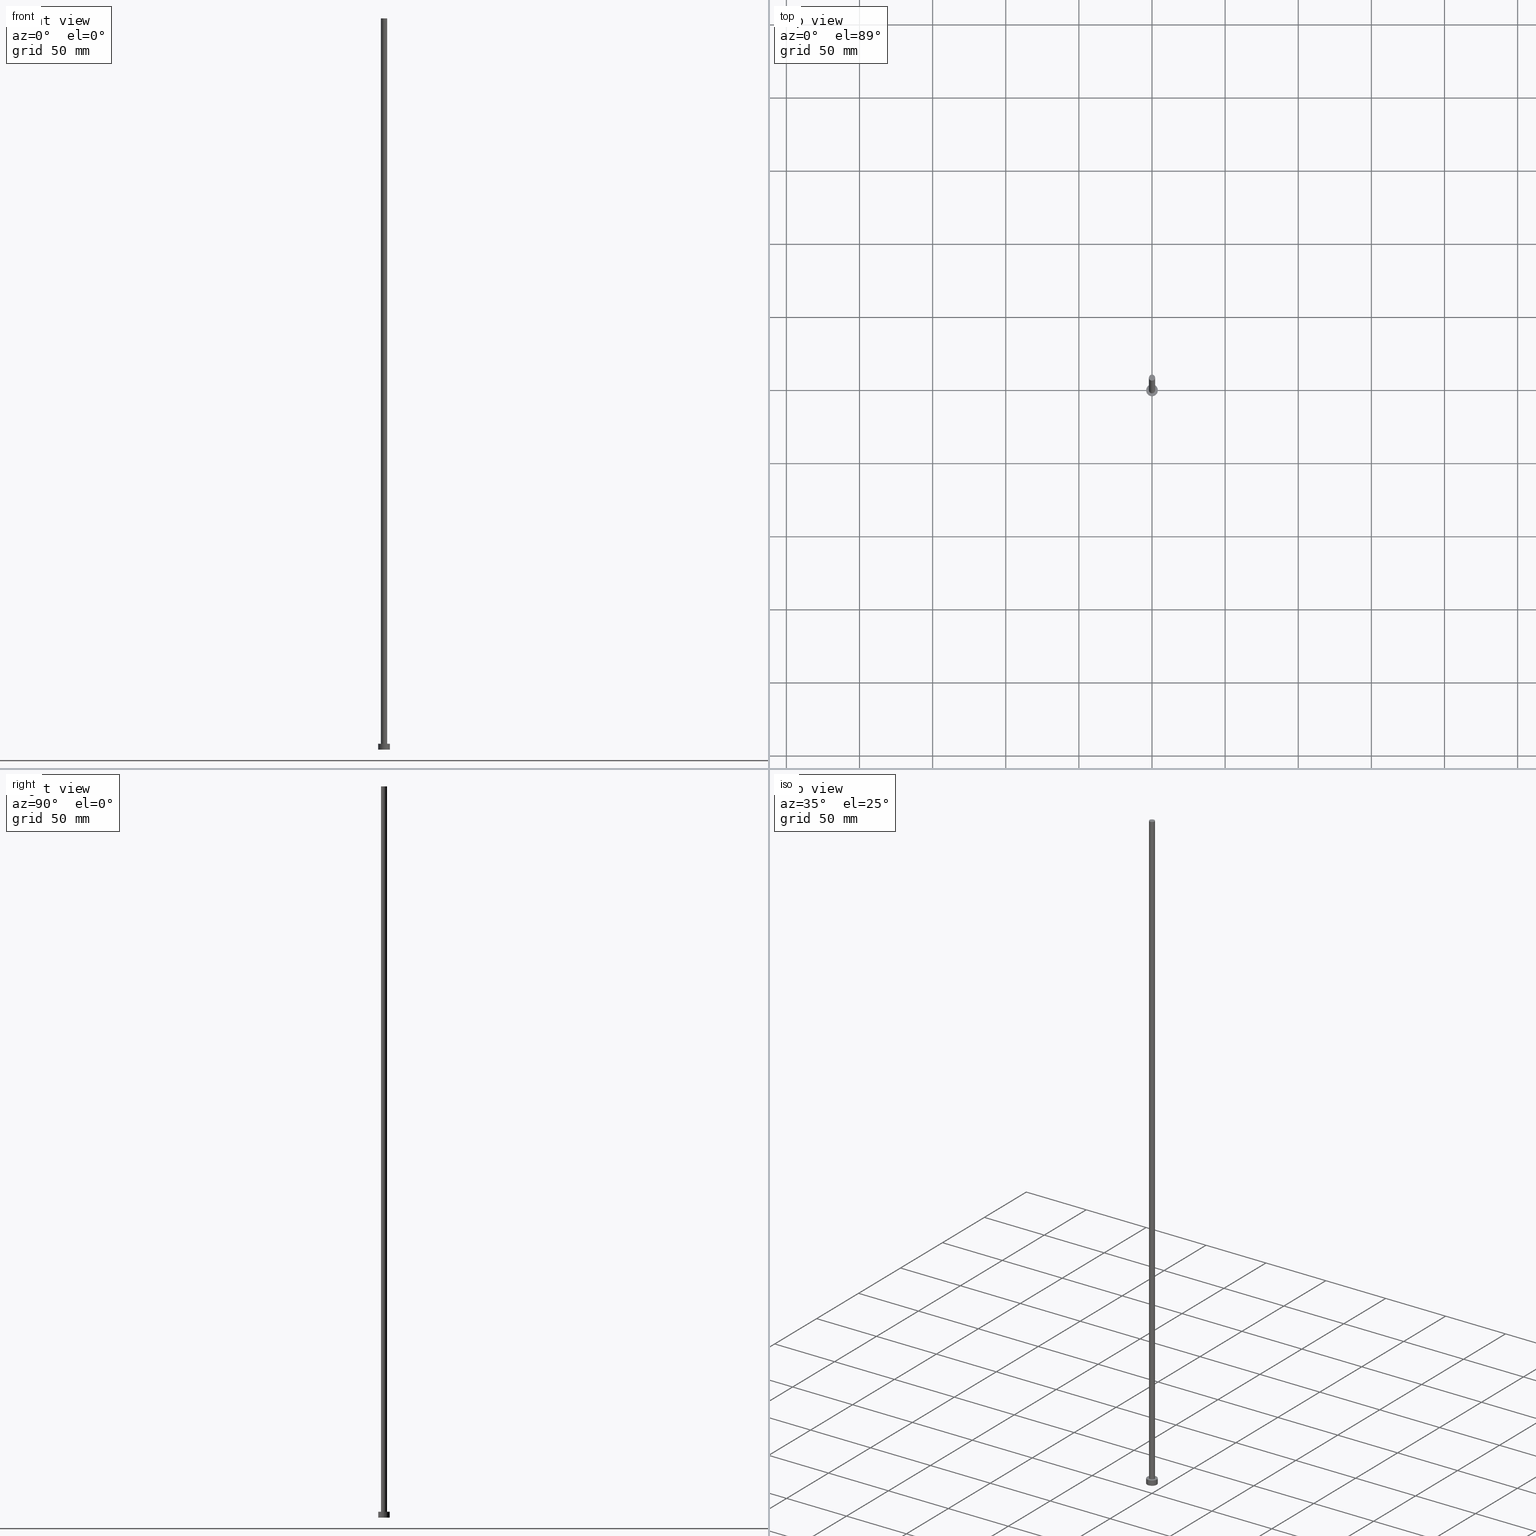
[diagram: canonical four-view strip — front | top / right | iso, engineering-drawing reading convention]
A machine part, canonical four-view strip (front | top / right | iso — engineering-drawing reading convention). The complete STEP part file that produces these views, byte-faithful:
ISO-10303-21;
HEADER;
FILE_DESCRIPTION (( 'STEP AP203' ),
    '1' );
FILE_NAME ('0093.STEP',
    '2023-02-13T16:22:10',
    ( '' ),
    ( '' ),
    'SwSTEP 2.0',
    'SolidWorks 2019',
    '' );
FILE_SCHEMA (( 'CONFIG_CONTROL_DESIGN' ));
ENDSEC;

DATA;
#1 = CARTESIAN_POINT ( 'NONE',  ( 0.000000000000000000, 0.000000000000000000, 4.000000000000000000 ) ) ;
#2 = DATE_TIME_ROLE ( 'classification_date' ) ;
#3 = APPROVAL_PERSON_ORGANIZATION ( #212, #12, #173 ) ;
#4 = CARTESIAN_POINT ( 'NONE',  ( 0.000000000000000000, 0.000000000000000000, 4.000000000000000000 ) ) ;
#5 = DIRECTION ( 'NONE',  ( 0.000000000000000000, 0.000000000000000000, 1.000000000000000000 ) ) ;
#6 = AXIS2_PLACEMENT_3D ( 'NONE', #76, #153, #100 ) ;
#7 = PRODUCT_RELATED_PRODUCT_CATEGORY ( 'detail', '', ( #253 ) ) ;
#8 = PERSON_AND_ORGANIZATION ( #105, #176 ) ;
#9 = ORIENTED_EDGE ( 'NONE', *, *, #29, .F. ) ;
#10 = CARTESIAN_POINT ( 'NONE',  ( 0.000000000000000000, 0.000000000000000000, 500.0000000000000000 ) ) ;
#11 = AXIS2_PLACEMENT_3D ( 'NONE', #10, #231, #66 ) ;
#12 = APPROVAL ( #88, 'NEUR�EN�' ) ;
#13 = ORIENTED_EDGE ( 'NONE', *, *, #16, .T. ) ;
#14 = EDGE_LOOP ( 'NONE', ( #236, #246 ) ) ;
#15 = CARTESIAN_POINT ( 'NONE',  ( 0.000000000000000000, 0.000000000000000000, 500.0000000000000000 ) ) ;
#16 = EDGE_CURVE ( 'NONE', #123, #148, #115, .T. ) ;
#17 = SECURITY_CLASSIFICATION ( '', '', #210 ) ;
#18 = APPROVAL_STATUS ( 'not_yet_approved' ) ;
#19 = DIRECTION ( 'NONE',  ( -1.000000000000000000, 0.000000000000000000, 0.000000000000000000 ) ) ;
#20 = AXIS2_PLACEMENT_3D ( 'NONE', #220, #192, #155 ) ;
#21 = ORIENTED_EDGE ( 'NONE', *, *, #181, .F. ) ;
#22 = APPROVAL ( #18, 'NEUR�EN�' ) ;
#23 = DIRECTION ( 'NONE',  ( -0.000000000000000000, -0.000000000000000000, -1.000000000000000000 ) ) ;
#24 = COORDINATED_UNIVERSAL_TIME_OFFSET ( 1, 0, .AHEAD. ) ;
#25 = CYLINDRICAL_SURFACE ( 'NONE', #6, 2.100000000000000089 ) ;
#26 = EDGE_CURVE ( 'NONE', #65, #157, #182, .T. ) ;
#27 = CC_DESIGN_SECURITY_CLASSIFICATION ( #17, ( #208 ) ) ;
#28 = DATE_TIME_ROLE ( 'creation_date' ) ;
#29 = EDGE_CURVE ( 'NONE', #179, #229, #91, .T. ) ;
#30 = DATE_AND_TIME ( #201, #46 ) ;
#31 = APPROVAL_PERSON_ORGANIZATION ( #110, #22, #232 ) ;
#32 = CARTESIAN_POINT ( 'NONE',  ( 0.000000000000000000, 0.000000000000000000, 0.000000000000000000 ) ) ;
#33 = AXIS2_PLACEMENT_3D ( 'NONE', #146, #185, #188 ) ;
#34 = EDGE_CURVE ( 'NONE', #249, #113, #135, .T. ) ;
#35 = ADVANCED_BREP_SHAPE_REPRESENTATION ( '0093', ( #217, #84 ), #44 ) ;
#36 = EDGE_LOOP ( 'NONE', ( #21, #9, #174, #90 ) ) ;
#37 = AXIS2_PLACEMENT_3D ( 'NONE', #58, #237, #162 ) ;
#38 = EDGE_CURVE ( 'NONE', #123, #157, #129, .T. ) ;
#39 = LINE ( 'NONE', #124, #221 ) ;
#40 = DIRECTION ( 'NONE',  ( -1.000000000000000000, 0.000000000000000000, 0.000000000000000000 ) ) ;
#41 = EDGE_LOOP ( 'NONE', ( #233, #127, #95, #144 ) ) ;
#42 = CYLINDRICAL_SURFACE ( 'NONE', #234, 4.000000000000000000 ) ;
#43 = CARTESIAN_POINT ( 'NONE',  ( 2.100000000000000089, 2.571758278209441957E-16, 500.0000000000000000 ) ) ;
#44 =( GEOMETRIC_REPRESENTATION_CONTEXT ( 3 ) GLOBAL_UNCERTAINTY_ASSIGNED_CONTEXT ( ( #150 ) ) GLOBAL_UNIT_ASSIGNED_CONTEXT ( ( #140, #207, #102 ) ) REPRESENTATION_CONTEXT ( 'NONE', 'WORKASPACE' ) );
#45 = LOCAL_TIME ( 17, 22, 10.00000000000000000, #81 ) ;
#46 = LOCAL_TIME ( 17, 22, 10.00000000000000000, #108 ) ;
#47 = EDGE_CURVE ( 'NONE', #157, #65, #230, .T. ) ;
#48 = CARTESIAN_POINT ( 'NONE',  ( -4.000000000000000000, 0.000000000000000000, 0.000000000000000000 ) ) ;
#49 = ORIENTED_EDGE ( 'NONE', *, *, #50, .F. ) ;
#50 = EDGE_CURVE ( 'NONE', #229, #179, #160, .T. ) ;
#51 = CARTESIAN_POINT ( 'NONE',  ( 0.000000000000000000, 0.000000000000000000, 0.000000000000000000 ) ) ;
#52 = DIRECTION ( 'NONE',  ( 0.000000000000000000, 0.000000000000000000, 1.000000000000000000 ) ) ;
#53 = CARTESIAN_POINT ( 'NONE',  ( 2.100000000000000089, 2.571758278209441957E-16, 4.000000000000000000 ) ) ;
#54 = LOCAL_TIME ( 17, 22, 10.00000000000000000, #24 ) ;
#55 = ORIENTED_EDGE ( 'NONE', *, *, #121, .F. ) ;
#56 = PERSON_AND_ORGANIZATION ( #105, #176 ) ;
#57 = CIRCLE ( 'NONE', #214, 2.100000000000000089 ) ;
#58 = CARTESIAN_POINT ( 'NONE',  ( 0.000000000000000000, 0.000000000000000000, 4.000000000000000000 ) ) ;
#59 = DIRECTION ( 'NONE',  ( 1.000000000000000000, 0.000000000000000000, -0.000000000000000000 ) ) ;
#60 = FACE_OUTER_BOUND ( 'NONE', #41, .T. ) ;
#61 = DIRECTION ( 'NONE',  ( -0.000000000000000000, -0.000000000000000000, -1.000000000000000000 ) ) ;
#62 = DIRECTION ( 'NONE',  ( 0.000000000000000000, 0.000000000000000000, 1.000000000000000000 ) ) ;
#63 = VECTOR ( 'NONE', #107, 1000.000000000000000 ) ;
#64 = CALENDAR_DATE ( 2023, 13, 2 ) ;
#65 = VERTEX_POINT ( 'NONE', #53 ) ;
#66 = DIRECTION ( 'NONE',  ( 1.000000000000000000, 0.000000000000000000, -0.000000000000000000 ) ) ;
#67 = ADVANCED_FACE ( 'NONE', ( #222 ), #97, .T. ) ;
#68 = CALENDAR_DATE ( 2023, 13, 2 ) ;
#69 = AXIS2_PLACEMENT_3D ( 'NONE', #194, #5, #243 ) ;
#70 = ORIENTED_EDGE ( 'NONE', *, *, #71, .F. ) ;
#71 = EDGE_CURVE ( 'NONE', #179, #249, #39, .T. ) ;
#72 = CC_DESIGN_APPROVAL ( #12, ( #109 ) ) ;
#73 = CARTESIAN_POINT ( 'NONE',  ( 4.000000000000000000, 4.898587196589412829E-16, 0.000000000000000000 ) ) ;
#74 = CC_DESIGN_PERSON_AND_ORGANIZATION_ASSIGNMENT ( #151, #77, ( #208 ) ) ;
#75 = DIRECTION ( 'NONE',  ( 0.000000000000000000, 0.000000000000000000, 1.000000000000000000 ) ) ;
#76 = CARTESIAN_POINT ( 'NONE',  ( 0.000000000000000000, 0.000000000000000000, 500.0000000000000000 ) ) ;
#77 = PERSON_AND_ORGANIZATION_ROLE ( 'design_supplier' ) ;
#78 = LINE ( 'NONE', #209, #198 ) ;
#79 = CLOSED_SHELL ( 'NONE', ( #67, #228, #161, #172, #190, #141, #235 ) ) ;
#80 = SHAPE_DEFINITION_REPRESENTATION ( #137, #35 ) ;
#81 = COORDINATED_UNIVERSAL_TIME_OFFSET ( 1, 0, .AHEAD. ) ;
#82 = FACE_OUTER_BOUND ( 'NONE', #98, .T. ) ;
#83 = AXIS2_PLACEMENT_3D ( 'NONE', #4, #170, #59 ) ;
#84 = AXIS2_PLACEMENT_3D ( 'NONE', #32, #62, #132 ) ;
#85 = CALENDAR_DATE ( 2023, 13, 2 ) ;
#86 = DIRECTION ( 'NONE',  ( 0.000000000000000000, 0.000000000000000000, 1.000000000000000000 ) ) ;
#87 = ORIENTED_EDGE ( 'NONE', *, *, #26, .T. ) ;
#88 = APPROVAL_STATUS ( 'not_yet_approved' ) ;
#89 = DIRECTION ( 'NONE',  ( -0.000000000000000000, -0.000000000000000000, -1.000000000000000000 ) ) ;
#90 = ORIENTED_EDGE ( 'NONE', *, *, #34, .T. ) ;
#91 = CIRCLE ( 'NONE', #242, 4.000000000000000000 ) ;
#92 = APPROVAL_DATE_TIME ( #178, #22 ) ;
#93 = CIRCLE ( 'NONE', #104, 4.000000000000000000 ) ;
#94 = CARTESIAN_POINT ( 'NONE',  ( -2.100000000000000089, 0.000000000000000000, 500.0000000000000000 ) ) ;
#95 = ORIENTED_EDGE ( 'NONE', *, *, #38, .T. ) ;
#96 = ORIENTED_EDGE ( 'NONE', *, *, #181, .T. ) ;
#97 = CYLINDRICAL_SURFACE ( 'NONE', #111, 2.100000000000000089 ) ;
#98 = EDGE_LOOP ( 'NONE', ( #13, #219 ) ) ;
#99 = PERSON_AND_ORGANIZATION ( #105, #176 ) ;
#100 = DIRECTION ( 'NONE',  ( -1.000000000000000000, 0.000000000000000000, 0.000000000000000000 ) ) ;
#101 = DIRECTION ( 'NONE',  ( 1.000000000000000000, 0.000000000000000000, 0.000000000000000000 ) ) ;
#102 =( NAMED_UNIT ( * ) SI_UNIT ( $, .STERADIAN. ) SOLID_ANGLE_UNIT ( ) );
#103 = PLANE ( 'NONE',  #83 ) ;
#104 = AXIS2_PLACEMENT_3D ( 'NONE', #51, #251, #205 ) ;
#105 = PERSON ( 'NEUR�EN�', 'NEUR�EN�', 'NEUR�EN�', ('NEUR�EN�'), ('NEUR�EN�'), ('NEUR�EN�') ) ;
#106 = ORIENTED_EDGE ( 'NONE', *, *, #184, .T. ) ;
#107 = DIRECTION ( 'NONE',  ( -0.000000000000000000, -0.000000000000000000, -1.000000000000000000 ) ) ;
#108 = COORDINATED_UNIVERSAL_TIME_OFFSET ( 1, 0, .AHEAD. ) ;
#109 = PRODUCT_DEFINITION ( 'NEZN�M�', '', #208, #125 ) ;
#110 = PERSON_AND_ORGANIZATION ( #105, #176 ) ;
#111 = AXIS2_PLACEMENT_3D ( 'NONE', #15, #145, #19 ) ;
#112 = FACE_OUTER_BOUND ( 'NONE', #147, .T. ) ;
#113 = VERTEX_POINT ( 'NONE', #73 ) ;
#114 = APPROVAL_DATE_TIME ( #133, #12 ) ;
#115 = CIRCLE ( 'NONE', #33, 2.100000000000000089 ) ;
#116 = CARTESIAN_POINT ( 'NONE',  ( 4.000000000000000000, 4.898587196589412829E-16, 4.000000000000000000 ) ) ;
#117 = COORDINATED_UNIVERSAL_TIME_OFFSET ( 1, 0, .AHEAD. ) ;
#118 = CC_DESIGN_APPROVAL ( #22, ( #208 ) ) ;
#119 = ORIENTED_EDGE ( 'NONE', *, *, #34, .F. ) ;
#120 = PERSON_AND_ORGANIZATION_ROLE ( 'creator' ) ;
#121 = EDGE_CURVE ( 'NONE', #148, #123, #57, .T. ) ;
#122 = AXIS2_PLACEMENT_3D ( 'NONE', #248, #86, #183 ) ;
#123 = VERTEX_POINT ( 'NONE', #94 ) ;
#124 = CARTESIAN_POINT ( 'NONE',  ( -4.000000000000000000, 0.000000000000000000, 4.000000000000000000 ) ) ;
#125 = DESIGN_CONTEXT ( 'detailed design', #200, 'design' ) ;
#126 = FACE_BOUND ( 'NONE', #223, .T. ) ;
#127 = ORIENTED_EDGE ( 'NONE', *, *, #16, .F. ) ;
#128 = APPROVAL_STATUS ( 'not_yet_approved' ) ;
#129 = LINE ( 'NONE', #134, #169 ) ;
#130 = PERSON_AND_ORGANIZATION_ROLE ( 'design_owner' ) ;
#131 = FACE_OUTER_BOUND ( 'NONE', #180, .T. ) ;
#132 = DIRECTION ( 'NONE',  ( 1.000000000000000000, 0.000000000000000000, 0.000000000000000000 ) ) ;
#133 = DATE_AND_TIME ( #85, #250 ) ;
#134 = CARTESIAN_POINT ( 'NONE',  ( -2.100000000000000089, 0.000000000000000000, 500.0000000000000000 ) ) ;
#135 = CIRCLE ( 'NONE', #20, 4.000000000000000000 ) ;
#136 = CC_DESIGN_PERSON_AND_ORGANIZATION_ASSIGNMENT ( #218, #120, ( #208 ) ) ;
#137 = PRODUCT_DEFINITION_SHAPE ( 'NONE', 'NONE',  #109 ) ;
#138 = CC_DESIGN_APPROVAL ( #204, ( #17 ) ) ;
#139 = DIRECTION ( 'NONE',  ( 0.000000000000000000, 0.000000000000000000, 1.000000000000000000 ) ) ;
#140 =( LENGTH_UNIT ( ) NAMED_UNIT ( * ) SI_UNIT ( .MILLI., .METRE. ) );
#141 = ADVANCED_FACE ( 'NONE', ( #60 ), #25, .T. ) ;
#142 = ORIENTED_EDGE ( 'NONE', *, *, #244, .T. ) ;
#143 = DIRECTION ( 'NONE',  ( 1.000000000000000000, 0.000000000000000000, 0.000000000000000000 ) ) ;
#144 = ORIENTED_EDGE ( 'NONE', *, *, #47, .T. ) ;
#145 = DIRECTION ( 'NONE',  ( -0.000000000000000000, -0.000000000000000000, -1.000000000000000000 ) ) ;
#146 = CARTESIAN_POINT ( 'NONE',  ( 0.000000000000000000, 0.000000000000000000, 500.0000000000000000 ) ) ;
#147 = EDGE_LOOP ( 'NONE', ( #119, #166 ) ) ;
#148 = VERTEX_POINT ( 'NONE', #167 ) ;
#149 = FACE_OUTER_BOUND ( 'NONE', #36, .T. ) ;
#150 = UNCERTAINTY_MEASURE_WITH_UNIT (LENGTH_MEASURE( 1.000000000000000082E-05 ), #140, 'distance_accuracy_value', 'NONE');
#151 = PERSON_AND_ORGANIZATION ( #105, #176 ) ;
#152 = CARTESIAN_POINT ( 'NONE',  ( -2.100000000000000089, 0.000000000000000000, 4.000000000000000000 ) ) ;
#153 = DIRECTION ( 'NONE',  ( -0.000000000000000000, -0.000000000000000000, -1.000000000000000000 ) ) ;
#154 = LINE ( 'NONE', #43, #63 ) ;
#155 = DIRECTION ( 'NONE',  ( 1.000000000000000000, 0.000000000000000000, 0.000000000000000000 ) ) ;
#156 = MECHANICAL_CONTEXT ( 'NONE', #224, 'mechanical' ) ;
#157 = VERTEX_POINT ( 'NONE', #152 ) ;
#158 = DATE_AND_TIME ( #64, #45 ) ;
#159 = CC_DESIGN_PERSON_AND_ORGANIZATION_ASSIGNMENT ( #8, #130, ( #253 ) ) ;
#160 = CIRCLE ( 'NONE', #37, 4.000000000000000000 ) ;
#161 = ADVANCED_FACE ( 'NONE', ( #149 ), #42, .T. ) ;
#162 = DIRECTION ( 'NONE',  ( 1.000000000000000000, 0.000000000000000000, 0.000000000000000000 ) ) ;
#163 = ORIENTED_EDGE ( 'NONE', *, *, #47, .F. ) ;
#164 = CARTESIAN_POINT ( 'NONE',  ( 0.000000000000000000, 0.000000000000000000, 4.000000000000000000 ) ) ;
#165 = CARTESIAN_POINT ( 'NONE',  ( 0.000000000000000000, 0.000000000000000000, 4.000000000000000000 ) ) ;
#166 = ORIENTED_EDGE ( 'NONE', *, *, #244, .F. ) ;
#167 = CARTESIAN_POINT ( 'NONE',  ( 2.100000000000000089, 2.571758278209441957E-16, 500.0000000000000000 ) ) ;
#168 = APPROVAL_DATE_TIME ( #30, #204 ) ;
#169 = VECTOR ( 'NONE', #89, 1000.000000000000000 ) ;
#170 = DIRECTION ( 'NONE',  ( 0.000000000000000000, 0.000000000000000000, 1.000000000000000000 ) ) ;
#171 = APPLICATION_PROTOCOL_DEFINITION ( 'international standard', 'config_control_design', 1994, #224 ) ;
#172 = ADVANCED_FACE ( 'NONE', ( #126, #240 ), #103, .T. ) ;
#173 = APPROVAL_ROLE ( '' ) ;
#174 = ORIENTED_EDGE ( 'NONE', *, *, #71, .T. ) ;
#175 = APPROVAL_ROLE ( '' ) ;
#176 = ORGANIZATION ( 'NEUR�EN�', 'NEUR�EN�', '' ) ;
#177 = COORDINATED_UNIVERSAL_TIME_OFFSET ( 1, 0, .AHEAD. ) ;
#178 = DATE_AND_TIME ( #68, #211 ) ;
#179 = VERTEX_POINT ( 'NONE', #225 ) ;
#180 = EDGE_LOOP ( 'NONE', ( #49, #96, #142, #70 ) ) ;
#181 = EDGE_CURVE ( 'NONE', #229, #113, #78, .T. ) ;
#182 = CIRCLE ( 'NONE', #216, 2.100000000000000089 ) ;
#183 = DIRECTION ( 'NONE',  ( 1.000000000000000000, 0.000000000000000000, 0.000000000000000000 ) ) ;
#184 = EDGE_CURVE ( 'NONE', #148, #65, #154, .T. ) ;
#185 = DIRECTION ( 'NONE',  ( 0.000000000000000000, 0.000000000000000000, 1.000000000000000000 ) ) ;
#186 = DATE_AND_TIME ( #193, #54 ) ;
#187 = DIRECTION ( 'NONE',  ( -1.000000000000000000, 0.000000000000000000, 0.000000000000000000 ) ) ;
#188 = DIRECTION ( 'NONE',  ( 1.000000000000000000, 0.000000000000000000, 0.000000000000000000 ) ) ;
#189 = DIRECTION ( 'NONE',  ( -0.000000000000000000, -0.000000000000000000, -1.000000000000000000 ) ) ;
#190 = ADVANCED_FACE ( 'NONE', ( #112 ), #196, .F. ) ;
#191 = CARTESIAN_POINT ( 'NONE',  ( 0.000000000000000000, 0.000000000000000000, 4.000000000000000000 ) ) ;
#192 = DIRECTION ( 'NONE',  ( 0.000000000000000000, 0.000000000000000000, 1.000000000000000000 ) ) ;
#193 = CALENDAR_DATE ( 2023, 13, 2 ) ;
#194 = CARTESIAN_POINT ( 'NONE',  ( 0.000000000000000000, 0.000000000000000000, 0.000000000000000000 ) ) ;
#195 = ORIENTED_EDGE ( 'NONE', *, *, #26, .F. ) ;
#196 = PLANE ( 'NONE',  #69 ) ;
#197 = APPLICATION_PROTOCOL_DEFINITION ( 'international standard', 'config_control_design', 1994, #200 ) ;
#198 = VECTOR ( 'NONE', #61, 1000.000000000000000 ) ;
#199 = PERSON_AND_ORGANIZATION ( #105, #176 ) ;
#200 = APPLICATION_CONTEXT ( 'configuration controlled 3d designs of mechanical parts and assemblies' ) ;
#201 = CALENDAR_DATE ( 2023, 13, 2 ) ;
#202 = PLANE ( 'NONE',  #11 ) ;
#203 = APPROVAL_PERSON_ORGANIZATION ( #56, #204, #175 ) ;
#204 = APPROVAL ( #128, 'NEUR�EN�' ) ;
#205 = DIRECTION ( 'NONE',  ( 1.000000000000000000, 0.000000000000000000, 0.000000000000000000 ) ) ;
#206 = DIRECTION ( 'NONE',  ( 1.000000000000000000, 0.000000000000000000, 0.000000000000000000 ) ) ;
#207 =( NAMED_UNIT ( * ) PLANE_ANGLE_UNIT ( ) SI_UNIT ( $, .RADIAN. ) );
#208 = PRODUCT_DEFINITION_FORMATION_WITH_SPECIFIED_SOURCE ( 'LIBOVOLN�', '', #253, .NOT_KNOWN. ) ;
#209 = CARTESIAN_POINT ( 'NONE',  ( 4.000000000000000000, 4.898587196589412829E-16, 4.000000000000000000 ) ) ;
#210 = SECURITY_CLASSIFICATION_LEVEL ( 'unclassified' ) ;
#211 = LOCAL_TIME ( 17, 22, 10.00000000000000000, #117 ) ;
#212 = PERSON_AND_ORGANIZATION ( #105, #176 ) ;
#213 = CYLINDRICAL_SURFACE ( 'NONE', #215, 4.000000000000000000 ) ;
#214 = AXIS2_PLACEMENT_3D ( 'NONE', #239, #139, #206 ) ;
#215 = AXIS2_PLACEMENT_3D ( 'NONE', #164, #226, #187 ) ;
#216 = AXIS2_PLACEMENT_3D ( 'NONE', #1, #75, #101 ) ;
#217 = MANIFOLD_SOLID_BREP ( 'P�idat vysunut�m3', #79 ) ;
#218 = PERSON_AND_ORGANIZATION ( #105, #176 ) ;
#219 = ORIENTED_EDGE ( 'NONE', *, *, #121, .T. ) ;
#220 = CARTESIAN_POINT ( 'NONE',  ( 0.000000000000000000, 0.000000000000000000, 0.000000000000000000 ) ) ;
#221 = VECTOR ( 'NONE', #23, 1000.000000000000000 ) ;
#222 = FACE_OUTER_BOUND ( 'NONE', #252, .T. ) ;
#223 = EDGE_LOOP ( 'NONE', ( #163, #195 ) ) ;
#224 = APPLICATION_CONTEXT ( 'configuration controlled 3d designs of mechanical parts and assemblies' ) ;
#225 = CARTESIAN_POINT ( 'NONE',  ( -4.000000000000000000, 0.000000000000000000, 4.000000000000000000 ) ) ;
#226 = DIRECTION ( 'NONE',  ( -0.000000000000000000, -0.000000000000000000, -1.000000000000000000 ) ) ;
#227 = CC_DESIGN_DATE_AND_TIME_ASSIGNMENT ( #158, #28, ( #109 ) ) ;
#228 = ADVANCED_FACE ( 'NONE', ( #131 ), #213, .T. ) ;
#229 = VERTEX_POINT ( 'NONE', #116 ) ;
#230 = CIRCLE ( 'NONE', #122, 2.100000000000000089 ) ;
#231 = DIRECTION ( 'NONE',  ( 0.000000000000000000, 0.000000000000000000, 1.000000000000000000 ) ) ;
#232 = APPROVAL_ROLE ( '' ) ;
#233 = ORIENTED_EDGE ( 'NONE', *, *, #184, .F. ) ;
#234 = AXIS2_PLACEMENT_3D ( 'NONE', #165, #189, #40 ) ;
#235 = ADVANCED_FACE ( 'NONE', ( #82 ), #202, .T. ) ;
#236 = ORIENTED_EDGE ( 'NONE', *, *, #29, .T. ) ;
#237 = DIRECTION ( 'NONE',  ( 0.000000000000000000, 0.000000000000000000, 1.000000000000000000 ) ) ;
#238 = CC_DESIGN_DATE_AND_TIME_ASSIGNMENT ( #186, #2, ( #17 ) ) ;
#239 = CARTESIAN_POINT ( 'NONE',  ( 0.000000000000000000, 0.000000000000000000, 500.0000000000000000 ) ) ;
#240 = FACE_OUTER_BOUND ( 'NONE', #14, .T. ) ;
#241 = PERSON_AND_ORGANIZATION_ROLE ( 'classification_officer' ) ;
#242 = AXIS2_PLACEMENT_3D ( 'NONE', #191, #52, #143 ) ;
#243 = DIRECTION ( 'NONE',  ( 1.000000000000000000, 0.000000000000000000, -0.000000000000000000 ) ) ;
#244 = EDGE_CURVE ( 'NONE', #113, #249, #93, .T. ) ;
#245 = PERSON_AND_ORGANIZATION_ROLE ( 'creator' ) ;
#246 = ORIENTED_EDGE ( 'NONE', *, *, #50, .T. ) ;
#247 = CC_DESIGN_PERSON_AND_ORGANIZATION_ASSIGNMENT ( #99, #241, ( #17 ) ) ;
#248 = CARTESIAN_POINT ( 'NONE',  ( 0.000000000000000000, 0.000000000000000000, 4.000000000000000000 ) ) ;
#249 = VERTEX_POINT ( 'NONE', #48 ) ;
#250 = LOCAL_TIME ( 17, 22, 10.00000000000000000, #177 ) ;
#251 = DIRECTION ( 'NONE',  ( 0.000000000000000000, 0.000000000000000000, 1.000000000000000000 ) ) ;
#252 = EDGE_LOOP ( 'NONE', ( #55, #106, #87, #254 ) ) ;
#253 = PRODUCT ( '0093', '0093', '', ( #156 ) ) ;
#254 = ORIENTED_EDGE ( 'NONE', *, *, #38, .F. ) ;
#255 = CC_DESIGN_PERSON_AND_ORGANIZATION_ASSIGNMENT ( #199, #245, ( #109 ) ) ;
ENDSEC;
END-ISO-10303-21;
